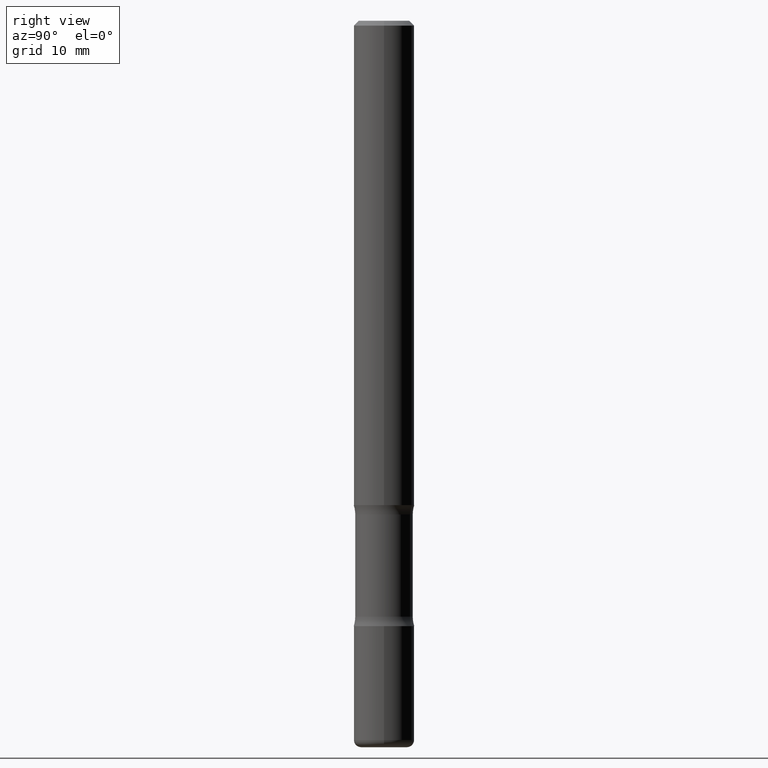
[diagram: clean part render]
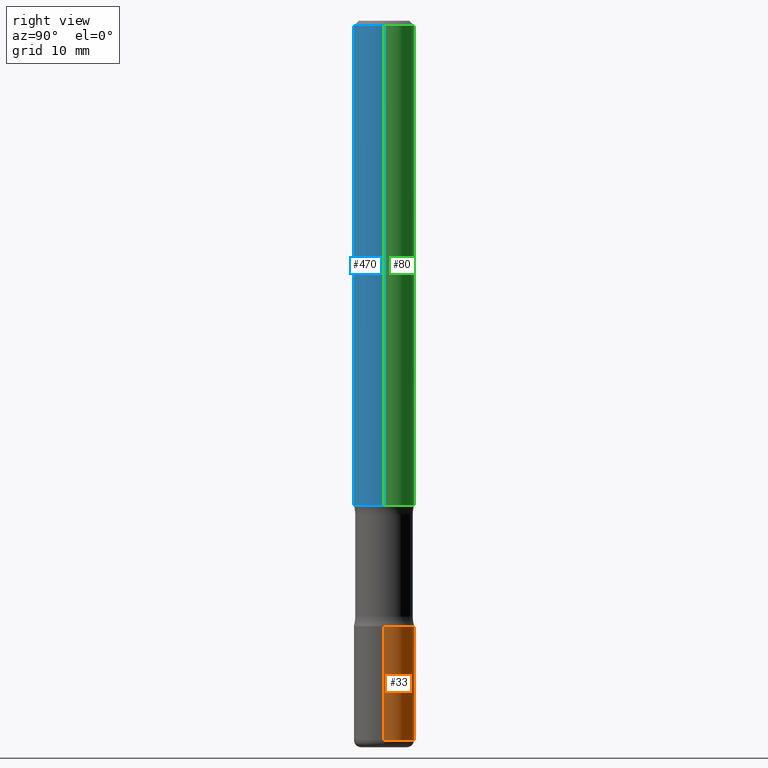
[diagram: same view with three faces highlighted in distinct colors, each labeled with its STEP entity id]
A machine part, right view with three faces highlighted in distinct colors.
Their STEP definitions:

[orange] entity #33 — the highlighted cylindrical surface (edge-blend (fillet) strip) has radius 3.175 mm, axis along (-0, 0, 1).
#5 = AXIS2_PLACEMENT_3D ( 'NONE', #119, #492, #537 ) ;
#7 = CARTESIAN_POINT ( 'NONE',  ( 0.1250000000000000555, -9.601573681818646704E-15, -2.499999999999999556 ) ) ;
#15 = CIRCLE ( 'NONE', #5, 0.1250000000000000555 ) ;
#22 = EDGE_CURVE ( 'NONE', #314, #27, #349, .T. ) ;
#27 = VERTEX_POINT ( 'NONE', #63 ) ;
#33 = ADVANCED_FACE ( 'NONE', ( #101 ), #106, .T. ) ;
#45 = EDGE_CURVE ( 'NONE', #223, #314, #381, .T. ) ;
#63 = CARTESIAN_POINT ( 'NONE',  ( -0.1250000000000000555, -8.661023042035876364E-15, -2.499999999999999556 ) ) ;
#66 = CARTESIAN_POINT ( 'NONE',  ( -0.1250000000000001110, 8.881784197001260212E-16, -6.148668862818637832E-30 ) ) ;
#89 = CARTESIAN_POINT ( 'NONE',  ( 0.1250000000000001110, -8.728703347107841277E-16, 6.095220969744924646E-30 ) ) ;
#101 = FACE_OUTER_BOUND ( 'NONE', #440, .T. ) ;
#106 = CYLINDRICAL_SURFACE ( 'NONE', #460, 0.1250000000000001110 ) ;
#119 = CARTESIAN_POINT ( 'NONE',  ( 6.113672015462840371E-29, -8.728703347107863365E-15, -2.499999999999999556 ) ) ;
#125 = CARTESIAN_POINT ( 'NONE',  ( -0.1250000000000000000, -9.481521156664016174E-15, -2.970000000000000195 ) ) ;
#138 = DIRECTION ( 'NONE',  ( 1.000000000000000000, -6.982962677686270655E-15, 0.000000000000000000 ) ) ;
#164 = EDGE_CURVE ( 'NONE', #489, #27, #15, .T. ) ;
#184 = ORIENTED_EDGE ( 'NONE', *, *, #280, .F. ) ;
#190 = CARTESIAN_POINT ( 'NONE',  ( 0.000000000000000000, 0.000000000000000000, 0.000000000000000000 ) ) ;
#203 = VECTOR ( 'NONE', #522, 39.37007874015748143 ) ;
#207 = LINE ( 'NONE', #89, #490 ) ;
#223 = VERTEX_POINT ( 'NONE', #458 ) ;
#262 = ORIENTED_EDGE ( 'NONE', *, *, #164, .F. ) ;
#266 = DIRECTION ( 'NONE',  ( -2.445468806185136597E-29, 3.491481338843145583E-15, 1.000000000000000000 ) ) ;
#270 = DIRECTION ( 'NONE',  ( 1.000000000000000000, -6.982962677686266711E-15, 4.876176775795935232E-29 ) ) ;
#280 = EDGE_CURVE ( 'NONE', #223, #489, #207, .T. ) ;
#314 = VERTEX_POINT ( 'NONE', #125 ) ;
#349 = LINE ( 'NONE', #66, #203 ) ;
#381 = CIRCLE ( 'NONE', #515, 0.1250000000000001388 ) ;
#398 = ORIENTED_EDGE ( 'NONE', *, *, #22, .T. ) ;
#433 = ORIENTED_EDGE ( 'NONE', *, *, #45, .T. ) ;
#440 = EDGE_LOOP ( 'NONE', ( #433, #398, #262, #184 ) ) ;
#442 = CARTESIAN_POINT ( 'NONE',  ( 7.263042354369856275E-29, -1.036969957636414298E-14, -2.970000000000000195 ) ) ;
#444 = DIRECTION ( 'NONE',  ( -2.445468806185136597E-29, 3.491481338843145583E-15, 1.000000000000000000 ) ) ;
#458 = CARTESIAN_POINT ( 'NONE',  ( 0.1250000000000000000, -1.124256991107492790E-14, -2.970000000000000195 ) ) ;
#460 = AXIS2_PLACEMENT_3D ( 'NONE', #190, #444, #270 ) ;
#489 = VERTEX_POINT ( 'NONE', #7 ) ;
#490 = VECTOR ( 'NONE', #558, 39.37007874015748143 ) ;
#492 = DIRECTION ( 'NONE',  ( -2.445468806185136597E-29, 3.491481338843145583E-15, 1.000000000000000000 ) ) ;
#515 = AXIS2_PLACEMENT_3D ( 'NONE', #442, #266, #138 ) ;
#522 = DIRECTION ( 'NONE',  ( -2.445468806185136877E-29, 3.491481338843145188E-15, 1.000000000000000000 ) ) ;
#537 = DIRECTION ( 'NONE',  ( 1.000000000000000000, -6.982962677686267499E-15, 0.000000000000000000 ) ) ;
#558 = DIRECTION ( 'NONE',  ( -2.445468806185136877E-29, 3.491481338843145188E-15, 1.000000000000000000 ) ) ;

[blue] entity #470 — the highlighted cylindrical surface (edge-blend (fillet) strip) has radius 3.175 mm, axis along (-0, 0, 1).
#14 = CARTESIAN_POINT ( 'NONE',  ( 0.1249999999999999167, -8.728703347107827472E-16, 6.095220969744915537E-30 ) ) ;
#21 = ORIENTED_EDGE ( 'NONE', *, *, #193, .F. ) ;
#44 = CARTESIAN_POINT ( 'NONE',  ( 0.1249999999999997918, -9.273918764983029686E-16, -0.02000000000000002470 ) ) ;
#46 = VECTOR ( 'NONE', #52, 39.37007874015748143 ) ;
#52 = DIRECTION ( 'NONE',  ( -2.445468806185136877E-29, 3.491481338843145188E-15, 1.000000000000000000 ) ) ;
#73 = VERTEX_POINT ( 'NONE', #158 ) ;
#109 = CIRCLE ( 'NONE', #263, 0.1250000000000000278 ) ;
#117 = ORIENTED_EDGE ( 'NONE', *, *, #234, .T. ) ;
#136 = CARTESIAN_POINT ( 'NONE',  ( -0.1249999999999999167, 8.881784197001246407E-16, -6.148668862818628023E-30 ) ) ;
#139 = DIRECTION ( 'NONE',  ( -2.445468806185136597E-29, 3.491481338843145583E-15, 1.000000000000000000 ) ) ;
#158 = CARTESIAN_POINT ( 'NONE',  ( -0.1250000000000000278, -2.638217732531448450E-15, -2.000000000000000000 ) ) ;
#178 = CYLINDRICAL_SURFACE ( 'NONE', #525, 0.1249999999999999167 ) ;
#179 = ORIENTED_EDGE ( 'NONE', *, *, #483, .F. ) ;
#186 = DIRECTION ( 'NONE',  ( -2.445468806185136877E-29, 3.491481338843145188E-15, 1.000000000000000000 ) ) ;
#193 = EDGE_CURVE ( 'NONE', #530, #308, #500, .T. ) ;
#215 = CARTESIAN_POINT ( 'NONE',  ( 0.1250000000000000278, -7.855833012397075293E-15, -2.000000000000000000 ) ) ;
#234 = EDGE_CURVE ( 'NONE', #73, #392, #109, .T. ) ;
#246 = DIRECTION ( 'NONE',  ( -2.445468806185136597E-29, 3.491481338843145583E-15, 1.000000000000000000 ) ) ;
#253 = CARTESIAN_POINT ( 'NONE',  ( 4.890937612370273194E-29, -6.982962677686291165E-15, -2.000000000000000000 ) ) ;
#263 = AXIS2_PLACEMENT_3D ( 'NONE', #253, #465, #335 ) ;
#264 = VECTOR ( 'NONE', #186, 39.37007874015748143 ) ;
#265 = DIRECTION ( 'NONE',  ( 1.000000000000000000, -6.982962677686266711E-15, 4.876176775795935793E-29 ) ) ;
#288 = CARTESIAN_POINT ( 'NONE',  ( 4.890937612370279289E-31, -6.982962677686299005E-17, -0.02000000000000002470 ) ) ;
#299 = EDGE_LOOP ( 'NONE', ( #179, #117, #302, #21 ) ) ;
#302 = ORIENTED_EDGE ( 'NONE', *, *, #533, .T. ) ;
#308 = VERTEX_POINT ( 'NONE', #44 ) ;
#335 = DIRECTION ( 'NONE',  ( 1.000000000000000000, -6.982962677686269077E-15, 0.000000000000000000 ) ) ;
#347 = FACE_OUTER_BOUND ( 'NONE', #299, .T. ) ;
#386 = LINE ( 'NONE', #14, #264 ) ;
#392 = VERTEX_POINT ( 'NONE', #215 ) ;
#401 = CARTESIAN_POINT ( 'NONE',  ( -0.1249999999999997918, 8.030407079339189559E-16, -0.02000000000000002470 ) ) ;
#419 = DIRECTION ( 'NONE',  ( 1.000000000000000000, -6.982962677686266711E-15, 0.000000000000000000 ) ) ;
#430 = CARTESIAN_POINT ( 'NONE',  ( 0.000000000000000000, 0.000000000000000000, 0.000000000000000000 ) ) ;
#431 = LINE ( 'NONE', #136, #46 ) ;
#465 = DIRECTION ( 'NONE',  ( -2.445468806185136597E-29, 3.491481338843145583E-15, 1.000000000000000000 ) ) ;
#470 = ADVANCED_FACE ( 'NONE', ( #347 ), #178, .T. ) ;
#483 = EDGE_CURVE ( 'NONE', #73, #530, #431, .T. ) ;
#500 = CIRCLE ( 'NONE', #510, 0.1249999999999997918 ) ;
#510 = AXIS2_PLACEMENT_3D ( 'NONE', #288, #246, #419 ) ;
#525 = AXIS2_PLACEMENT_3D ( 'NONE', #430, #139, #265 ) ;
#530 = VERTEX_POINT ( 'NONE', #401 ) ;
#533 = EDGE_CURVE ( 'NONE', #392, #308, #386, .T. ) ;

[green] entity #80 — the highlighted cylindrical surface (edge-blend (fillet) strip) has radius 3.175 mm, axis along (-0, 0, 1).
#1 = EDGE_CURVE ( 'NONE', #392, #73, #218, .T. ) ;
#14 = CARTESIAN_POINT ( 'NONE',  ( 0.1249999999999999167, -8.728703347107827472E-16, 6.095220969744915537E-30 ) ) ;
#40 = CARTESIAN_POINT ( 'NONE',  ( 4.890937612370279289E-31, -6.982962677686299005E-17, -0.02000000000000002470 ) ) ;
#44 = CARTESIAN_POINT ( 'NONE',  ( 0.1249999999999997918, -9.273918764983029686E-16, -0.02000000000000002470 ) ) ;
#46 = VECTOR ( 'NONE', #52, 39.37007874015748143 ) ;
#52 = DIRECTION ( 'NONE',  ( -2.445468806185136877E-29, 3.491481338843145188E-15, 1.000000000000000000 ) ) ;
#59 = DIRECTION ( 'NONE',  ( -2.445468806185136597E-29, 3.491481338843145583E-15, 1.000000000000000000 ) ) ;
#73 = VERTEX_POINT ( 'NONE', #158 ) ;
#80 = ADVANCED_FACE ( 'NONE', ( #113 ), #415, .T. ) ;
#113 = FACE_OUTER_BOUND ( 'NONE', #485, .T. ) ;
#136 = CARTESIAN_POINT ( 'NONE',  ( -0.1249999999999999167, 8.881784197001246407E-16, -6.148668862818628023E-30 ) ) ;
#158 = CARTESIAN_POINT ( 'NONE',  ( -0.1250000000000000278, -2.638217732531448450E-15, -2.000000000000000000 ) ) ;
#186 = DIRECTION ( 'NONE',  ( -2.445468806185136877E-29, 3.491481338843145188E-15, 1.000000000000000000 ) ) ;
#192 = DIRECTION ( 'NONE',  ( 1.000000000000000000, -6.982962677686266711E-15, 4.876176775795935793E-29 ) ) ;
#209 = DIRECTION ( 'NONE',  ( -2.445468806185136597E-29, 3.491481338843145583E-15, 1.000000000000000000 ) ) ;
#215 = CARTESIAN_POINT ( 'NONE',  ( 0.1250000000000000278, -7.855833012397075293E-15, -2.000000000000000000 ) ) ;
#218 = CIRCLE ( 'NONE', #272, 0.1250000000000000278 ) ;
#228 = DIRECTION ( 'NONE',  ( 1.000000000000000000, -6.982962677686269077E-15, 0.000000000000000000 ) ) ;
#264 = VECTOR ( 'NONE', #186, 39.37007874015748143 ) ;
#272 = AXIS2_PLACEMENT_3D ( 'NONE', #520, #59, #228 ) ;
#284 = CARTESIAN_POINT ( 'NONE',  ( 0.000000000000000000, 0.000000000000000000, 0.000000000000000000 ) ) ;
#298 = ORIENTED_EDGE ( 'NONE', *, *, #533, .F. ) ;
#308 = VERTEX_POINT ( 'NONE', #44 ) ;
#313 = EDGE_CURVE ( 'NONE', #308, #530, #425, .T. ) ;
#320 = DIRECTION ( 'NONE',  ( -2.445468806185136597E-29, 3.491481338843145583E-15, 1.000000000000000000 ) ) ;
#332 = AXIS2_PLACEMENT_3D ( 'NONE', #40, #209, #380 ) ;
#358 = ORIENTED_EDGE ( 'NONE', *, *, #1, .T. ) ;
#380 = DIRECTION ( 'NONE',  ( 1.000000000000000000, -6.982962677686266711E-15, 0.000000000000000000 ) ) ;
#386 = LINE ( 'NONE', #14, #264 ) ;
#392 = VERTEX_POINT ( 'NONE', #215 ) ;
#401 = CARTESIAN_POINT ( 'NONE',  ( -0.1249999999999997918, 8.030407079339189559E-16, -0.02000000000000002470 ) ) ;
#415 = CYLINDRICAL_SURFACE ( 'NONE', #488, 0.1249999999999999167 ) ;
#425 = CIRCLE ( 'NONE', #332, 0.1249999999999997918 ) ;
#431 = LINE ( 'NONE', #136, #46 ) ;
#461 = ORIENTED_EDGE ( 'NONE', *, *, #483, .T. ) ;
#483 = EDGE_CURVE ( 'NONE', #73, #530, #431, .T. ) ;
#485 = EDGE_LOOP ( 'NONE', ( #358, #461, #496, #298 ) ) ;
#488 = AXIS2_PLACEMENT_3D ( 'NONE', #284, #320, #192 ) ;
#496 = ORIENTED_EDGE ( 'NONE', *, *, #313, .F. ) ;
#520 = CARTESIAN_POINT ( 'NONE',  ( 4.890937612370273194E-29, -6.982962677686291165E-15, -2.000000000000000000 ) ) ;
#530 = VERTEX_POINT ( 'NONE', #401 ) ;
#533 = EDGE_CURVE ( 'NONE', #392, #308, #386, .T. ) ;